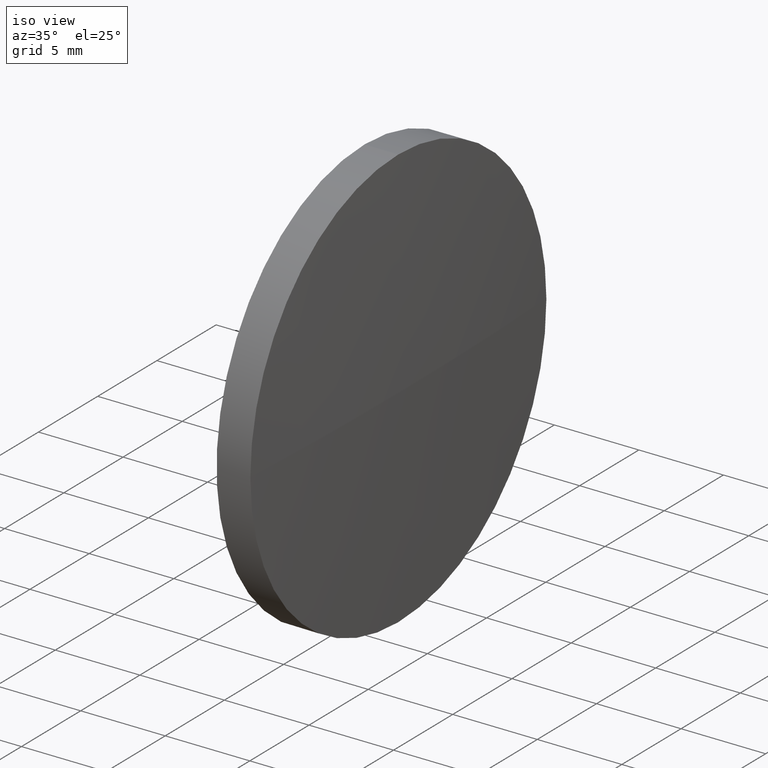
[diagram: clean part render]
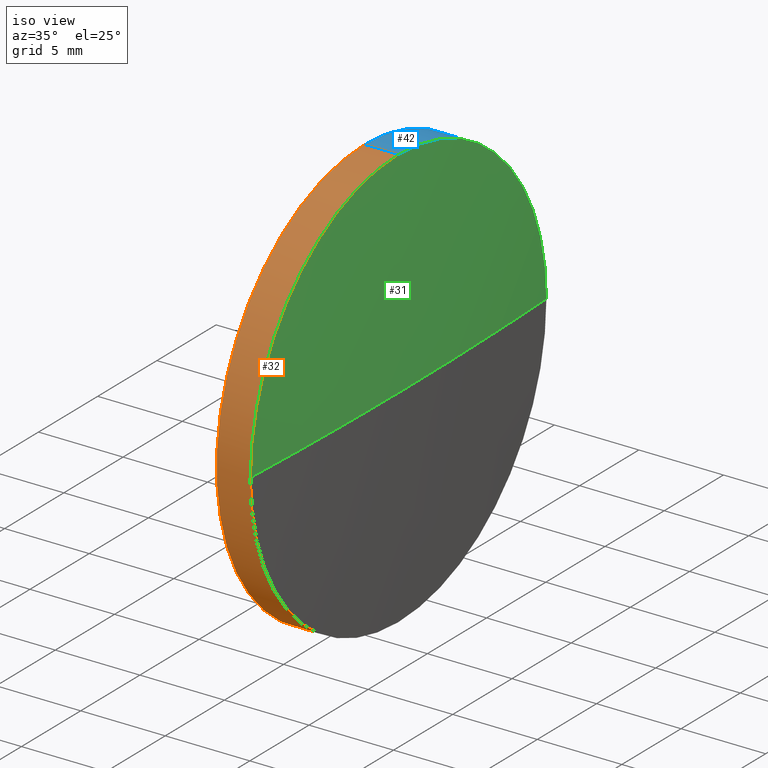
[diagram: same view with three faces highlighted in distinct colors, each labeled with its STEP entity id]
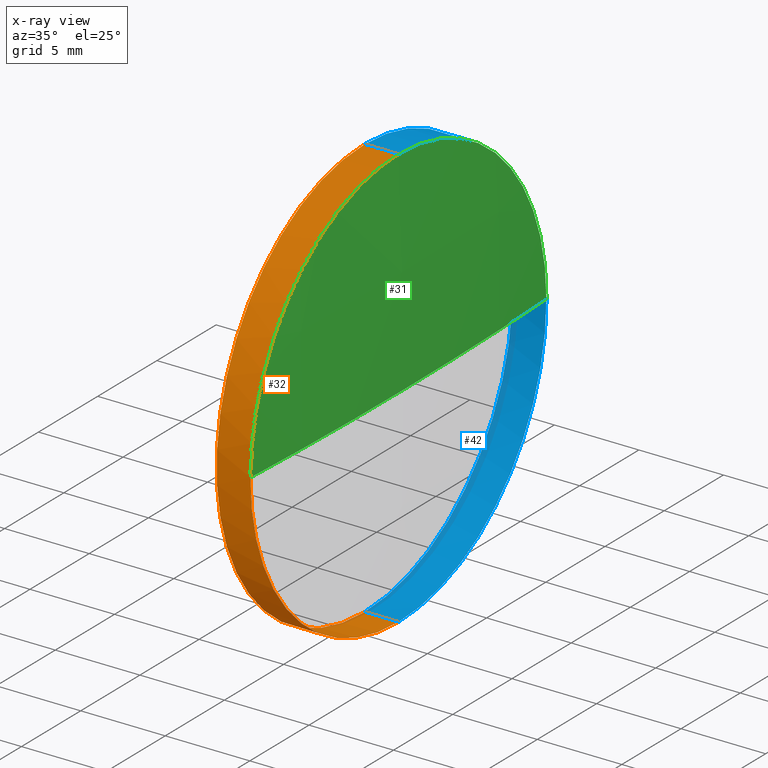
[diagram: x-ray of the same camera — body ghosted, the three highlighted faces saturated]
A machine part, iso view with three faces highlighted in distinct colors.
The next image is the same camera in x-ray (body ghosted, the three faces saturated) — at least one of them is partly hidden behind the body in this view.
Their STEP definitions:

[orange] entity #32 — the highlighted cylindrical surface (partial cylindrical patch) has radius 12.5 mm, axis along (-1, -0, -0).
#2 = DIRECTION ( 'NONE',  ( -1.000000000000000000, -0.0000000000000000000, -0.0000000000000000000 ) ) ;
#10 = DIRECTION ( 'NONE',  ( -1.000000000000000000, -0.0000000000000000000, -0.0000000000000000000 ) ) ;
#15 = CARTESIAN_POINT ( 'NONE',  ( 473.4034351114584600, 56.21778746480561000, -12.50000000000000400 ) ) ;
#17 = CARTESIAN_POINT ( 'NONE',  ( 477.4325426898954600, 43.71778746480575300, -1.530808498934124900E-015 ) ) ;
#19 = CARTESIAN_POINT ( 'NONE',  ( 477.4325426898954600, 56.21778746480561000, 0.0000000000000000000 ) ) ;
#25 = CARTESIAN_POINT ( 'NONE',  ( 477.4325426898954600, 56.21778746480561000, 0.0000000000000000000 ) ) ;
#28 = AXIS2_PLACEMENT_3D ( 'NONE', #25, #139, #62 ) ;
#32 = ADVANCED_FACE ( 'NONE', ( #100 ), #141, .T. ) ;
#33 = CARTESIAN_POINT ( 'NONE',  ( 477.4325426898954600, 56.21778746480561000, 12.50000000000000400 ) ) ;
#36 = ORIENTED_EDGE ( 'NONE', *, *, #97, .T. ) ;
#39 = AXIS2_PLACEMENT_3D ( 'NONE', #138, #10, #98 ) ;
#47 = VERTEX_POINT ( 'NONE', #111 ) ;
#55 = CIRCLE ( 'NONE', #28, 12.50000000000000400 ) ;
#57 = VERTEX_POINT ( 'NONE', #168 ) ;
#62 = DIRECTION ( 'NONE',  ( 0.0000000000000000000, 0.0000000000000000000, 1.000000000000000000 ) ) ;
#64 = AXIS2_PLACEMENT_3D ( 'NONE', #160, #147, #81 ) ;
#66 = ORIENTED_EDGE ( 'NONE', *, *, #178, .T. ) ;
#71 = VECTOR ( 'NONE', #2, 1000.000000000000000 ) ;
#73 = EDGE_CURVE ( 'NONE', #183, #145, #55, .T. ) ;
#75 = EDGE_LOOP ( 'NONE', ( #113, #66, #124, #36, #121 ) ) ;
#81 = DIRECTION ( 'NONE',  ( 0.0000000000000000000, 0.0000000000000000000, 1.000000000000000000 ) ) ;
#82 = LINE ( 'NONE', #15, #89 ) ;
#85 = EDGE_CURVE ( 'NONE', #57, #127, #82, .T. ) ;
#89 = VECTOR ( 'NONE', #130, 1000.000000000000000 ) ;
#93 = EDGE_CURVE ( 'NONE', #127, #47, #109, .T. ) ;
#94 = CARTESIAN_POINT ( 'NONE',  ( 473.4034351114584600, 56.21778746480561000, 12.50000000000000400 ) ) ;
#97 = EDGE_CURVE ( 'NONE', #145, #47, #156, .T. ) ;
#98 = DIRECTION ( 'NONE',  ( 0.0000000000000000000, 0.0000000000000000000, 1.000000000000000000 ) ) ;
#99 = CIRCLE ( 'NONE', #114, 12.50000000000000400 ) ;
#100 = FACE_OUTER_BOUND ( 'NONE', #75, .T. ) ;
#109 = CIRCLE ( 'NONE', #64, 12.50000000000000400 ) ;
#111 = CARTESIAN_POINT ( 'NONE',  ( 475.4325426898954600, 56.21778746480561000, 12.50000000000000400 ) ) ;
#113 = ORIENTED_EDGE ( 'NONE', *, *, #85, .F. ) ;
#114 = AXIS2_PLACEMENT_3D ( 'NONE', #19, #118, #152 ) ;
#118 = DIRECTION ( 'NONE',  ( -1.000000000000000000, -0.0000000000000000000, -0.0000000000000000000 ) ) ;
#121 = ORIENTED_EDGE ( 'NONE', *, *, #93, .F. ) ;
#124 = ORIENTED_EDGE ( 'NONE', *, *, #73, .T. ) ;
#127 = VERTEX_POINT ( 'NONE', #132 ) ;
#130 = DIRECTION ( 'NONE',  ( -1.000000000000000000, -0.0000000000000000000, -0.0000000000000000000 ) ) ;
#132 = CARTESIAN_POINT ( 'NONE',  ( 475.4325426898954600, 56.21778746480561000, -12.50000000000000400 ) ) ;
#138 = CARTESIAN_POINT ( 'NONE',  ( 473.4034351114584600, 56.21778746480561000, 0.0000000000000000000 ) ) ;
#139 = DIRECTION ( 'NONE',  ( -1.000000000000000000, -0.0000000000000000000, -0.0000000000000000000 ) ) ;
#141 = CYLINDRICAL_SURFACE ( 'NONE', #39, 12.50000000000000400 ) ;
#145 = VERTEX_POINT ( 'NONE', #33 ) ;
#147 = DIRECTION ( 'NONE',  ( -1.000000000000000000, -0.0000000000000000000, -0.0000000000000000000 ) ) ;
#152 = DIRECTION ( 'NONE',  ( 0.0000000000000000000, 0.0000000000000000000, 1.000000000000000000 ) ) ;
#156 = LINE ( 'NONE', #94, #71 ) ;
#160 = CARTESIAN_POINT ( 'NONE',  ( 475.4325426898954600, 56.21778746480561000, 0.0000000000000000000 ) ) ;
#168 = CARTESIAN_POINT ( 'NONE',  ( 477.4325426898954600, 56.21778746480561000, -12.50000000000000400 ) ) ;
#178 = EDGE_CURVE ( 'NONE', #57, #183, #99, .T. ) ;
#183 = VERTEX_POINT ( 'NONE', #17 ) ;

[blue] entity #42 — the highlighted cylindrical surface (partial cylindrical patch) has radius 12.5 mm, axis along (-1, -0, -0).
#2 = DIRECTION ( 'NONE',  ( -1.000000000000000000, -0.0000000000000000000, -0.0000000000000000000 ) ) ;
#7 = ORIENTED_EDGE ( 'NONE', *, *, #44, .T. ) ;
#8 = DIRECTION ( 'NONE',  ( 0.0000000000000000000, 0.0000000000000000000, 1.000000000000000000 ) ) ;
#9 = DIRECTION ( 'NONE',  ( 0.0000000000000000000, 0.0000000000000000000, 1.000000000000000000 ) ) ;
#12 = CIRCLE ( 'NONE', #153, 12.50000000000000400 ) ;
#15 = CARTESIAN_POINT ( 'NONE',  ( 473.4034351114584600, 56.21778746480561000, -12.50000000000000400 ) ) ;
#21 = EDGE_CURVE ( 'NONE', #47, #127, #115, .T. ) ;
#33 = CARTESIAN_POINT ( 'NONE',  ( 477.4325426898954600, 56.21778746480561000, 12.50000000000000400 ) ) ;
#37 = DIRECTION ( 'NONE',  ( -1.000000000000000000, -0.0000000000000000000, -0.0000000000000000000 ) ) ;
#42 = ADVANCED_FACE ( 'NONE', ( #102 ), #96, .T. ) ;
#44 = EDGE_CURVE ( 'NONE', #145, #173, #12, .T. ) ;
#47 = VERTEX_POINT ( 'NONE', #111 ) ;
#51 = DIRECTION ( 'NONE',  ( -1.000000000000000000, -0.0000000000000000000, -0.0000000000000000000 ) ) ;
#52 = CARTESIAN_POINT ( 'NONE',  ( 477.4325426898954600, 56.21778746480561000, 0.0000000000000000000 ) ) ;
#54 = EDGE_CURVE ( 'NONE', #173, #57, #172, .T. ) ;
#57 = VERTEX_POINT ( 'NONE', #168 ) ;
#67 = CARTESIAN_POINT ( 'NONE',  ( 477.4325426898954600, 56.21778746480561000, 0.0000000000000000000 ) ) ;
#68 = AXIS2_PLACEMENT_3D ( 'NONE', #110, #51, #170 ) ;
#69 = DIRECTION ( 'NONE',  ( 0.0000000000000000000, 0.0000000000000000000, 1.000000000000000000 ) ) ;
#71 = VECTOR ( 'NONE', #2, 1000.000000000000000 ) ;
#82 = LINE ( 'NONE', #15, #89 ) ;
#85 = EDGE_CURVE ( 'NONE', #57, #127, #82, .T. ) ;
#86 = DIRECTION ( 'NONE',  ( -1.000000000000000000, -0.0000000000000000000, -0.0000000000000000000 ) ) ;
#89 = VECTOR ( 'NONE', #130, 1000.000000000000000 ) ;
#94 = CARTESIAN_POINT ( 'NONE',  ( 473.4034351114584600, 56.21778746480561000, 12.50000000000000400 ) ) ;
#96 = CYLINDRICAL_SURFACE ( 'NONE', #68, 12.50000000000000400 ) ;
#97 = EDGE_CURVE ( 'NONE', #145, #47, #156, .T. ) ;
#101 = ORIENTED_EDGE ( 'NONE', *, *, #54, .T. ) ;
#102 = FACE_OUTER_BOUND ( 'NONE', #135, .T. ) ;
#103 = ORIENTED_EDGE ( 'NONE', *, *, #21, .F. ) ;
#110 = CARTESIAN_POINT ( 'NONE',  ( 473.4034351114584600, 56.21778746480561000, 0.0000000000000000000 ) ) ;
#111 = CARTESIAN_POINT ( 'NONE',  ( 475.4325426898954600, 56.21778746480561000, 12.50000000000000400 ) ) ;
#115 = CIRCLE ( 'NONE', #161, 12.50000000000000400 ) ;
#126 = AXIS2_PLACEMENT_3D ( 'NONE', #52, #86, #8 ) ;
#127 = VERTEX_POINT ( 'NONE', #132 ) ;
#129 = ORIENTED_EDGE ( 'NONE', *, *, #85, .T. ) ;
#130 = DIRECTION ( 'NONE',  ( -1.000000000000000000, -0.0000000000000000000, -0.0000000000000000000 ) ) ;
#132 = CARTESIAN_POINT ( 'NONE',  ( 475.4325426898954600, 56.21778746480561000, -12.50000000000000400 ) ) ;
#135 = EDGE_LOOP ( 'NONE', ( #101, #129, #103, #159, #7 ) ) ;
#136 = DIRECTION ( 'NONE',  ( -1.000000000000000000, -0.0000000000000000000, -0.0000000000000000000 ) ) ;
#145 = VERTEX_POINT ( 'NONE', #33 ) ;
#153 = AXIS2_PLACEMENT_3D ( 'NONE', #67, #37, #9 ) ;
#156 = LINE ( 'NONE', #94, #71 ) ;
#159 = ORIENTED_EDGE ( 'NONE', *, *, #97, .F. ) ;
#161 = AXIS2_PLACEMENT_3D ( 'NONE', #181, #136, #69 ) ;
#168 = CARTESIAN_POINT ( 'NONE',  ( 477.4325426898954600, 56.21778746480561000, -12.50000000000000400 ) ) ;
#170 = DIRECTION ( 'NONE',  ( 0.0000000000000000000, 0.0000000000000000000, 1.000000000000000000 ) ) ;
#172 = CIRCLE ( 'NONE', #126, 12.50000000000000400 ) ;
#173 = VERTEX_POINT ( 'NONE', #186 ) ;
#181 = CARTESIAN_POINT ( 'NONE',  ( 475.4325426898954600, 56.21778746480561000, 0.0000000000000000000 ) ) ;
#186 = CARTESIAN_POINT ( 'NONE',  ( 477.4325426898954600, 68.71778746480505600, 0.0000000000000000000 ) ) ;

[green] entity #31 — the highlighted spherical surface has radius 260.567 mm.
#1 = CARTESIAN_POINT ( 'NONE',  ( 217.1658760232263000, 56.21778746480520500, 0.0000000000000000000 ) ) ;
#3 = EDGE_LOOP ( 'NONE', ( #134, #26, #88, #142 ) ) ;
#5 = DIRECTION ( 'NONE',  ( -0.0000000000000000000, 0.0000000000000000000, -1.000000000000000000 ) ) ;
#9 = DIRECTION ( 'NONE',  ( 0.0000000000000000000, 0.0000000000000000000, 1.000000000000000000 ) ) ;
#12 = CIRCLE ( 'NONE', #153, 12.50000000000000400 ) ;
#14 = FACE_OUTER_BOUND ( 'NONE', #3, .T. ) ;
#17 = CARTESIAN_POINT ( 'NONE',  ( 477.4325426898954600, 43.71778746480575300, -1.530808498934124900E-015 ) ) ;
#22 = SPHERICAL_SURFACE ( 'NONE', #49, 260.5666666666690500 ) ;
#25 = CARTESIAN_POINT ( 'NONE',  ( 477.4325426898954600, 56.21778746480561000, 0.0000000000000000000 ) ) ;
#26 = ORIENTED_EDGE ( 'NONE', *, *, #143, .T. ) ;
#28 = AXIS2_PLACEMENT_3D ( 'NONE', #25, #139, #62 ) ;
#31 = ADVANCED_FACE ( 'NONE', ( #14 ), #22, .T. ) ;
#33 = CARTESIAN_POINT ( 'NONE',  ( 477.4325426898954600, 56.21778746480561000, 12.50000000000000400 ) ) ;
#35 = CIRCLE ( 'NONE', #74, 260.5666666666690500 ) ;
#37 = DIRECTION ( 'NONE',  ( -1.000000000000000000, -0.0000000000000000000, -0.0000000000000000000 ) ) ;
#41 = DIRECTION ( 'NONE',  ( 0.0000000000000000000, 1.224646799147353200E-016, -1.000000000000000000 ) ) ;
#44 = EDGE_CURVE ( 'NONE', #145, #173, #12, .T. ) ;
#45 = DIRECTION ( 'NONE',  ( -0.0000000000000000000, 0.0000000000000000000, 1.000000000000000000 ) ) ;
#49 = AXIS2_PLACEMENT_3D ( 'NONE', #154, #5, #122 ) ;
#55 = CIRCLE ( 'NONE', #28, 12.50000000000000400 ) ;
#62 = DIRECTION ( 'NONE',  ( 0.0000000000000000000, 0.0000000000000000000, 1.000000000000000000 ) ) ;
#67 = CARTESIAN_POINT ( 'NONE',  ( 477.4325426898954600, 56.21778746480561000, 0.0000000000000000000 ) ) ;
#73 = EDGE_CURVE ( 'NONE', #183, #145, #55, .T. ) ;
#74 = AXIS2_PLACEMENT_3D ( 'NONE', #90, #41, #107 ) ;
#78 = DIRECTION ( 'NONE',  ( 1.000000000000000000, 0.0000000000000000000, 0.0000000000000000000 ) ) ;
#84 = CIRCLE ( 'NONE', #106, 260.5666666666690500 ) ;
#88 = ORIENTED_EDGE ( 'NONE', *, *, #44, .F. ) ;
#90 = CARTESIAN_POINT ( 'NONE',  ( 217.1658760232263000, 56.21778746480520500, 0.0000000000000000000 ) ) ;
#106 = AXIS2_PLACEMENT_3D ( 'NONE', #1, #45, #78 ) ;
#107 = DIRECTION ( 'NONE',  ( 0.0000000000000000000, 1.000000000000000000, 1.224646799147353200E-016 ) ) ;
#112 = VERTEX_POINT ( 'NONE', #117 ) ;
#117 = CARTESIAN_POINT ( 'NONE',  ( 477.7325426898954100, 56.21778746480522000, 0.0000000000000000000 ) ) ;
#122 = DIRECTION ( 'NONE',  ( 0.0000000000000000000, 1.000000000000000000, 0.0000000000000000000 ) ) ;
#128 = EDGE_CURVE ( 'NONE', #112, #183, #35, .T. ) ;
#134 = ORIENTED_EDGE ( 'NONE', *, *, #128, .F. ) ;
#139 = DIRECTION ( 'NONE',  ( -1.000000000000000000, -0.0000000000000000000, -0.0000000000000000000 ) ) ;
#142 = ORIENTED_EDGE ( 'NONE', *, *, #73, .F. ) ;
#143 = EDGE_CURVE ( 'NONE', #112, #173, #84, .T. ) ;
#145 = VERTEX_POINT ( 'NONE', #33 ) ;
#153 = AXIS2_PLACEMENT_3D ( 'NONE', #67, #37, #9 ) ;
#154 = CARTESIAN_POINT ( 'NONE',  ( 217.1658760232263000, 56.21778746480520500, 0.0000000000000000000 ) ) ;
#173 = VERTEX_POINT ( 'NONE', #186 ) ;
#183 = VERTEX_POINT ( 'NONE', #17 ) ;
#186 = CARTESIAN_POINT ( 'NONE',  ( 477.4325426898954600, 68.71778746480505600, 0.0000000000000000000 ) ) ;